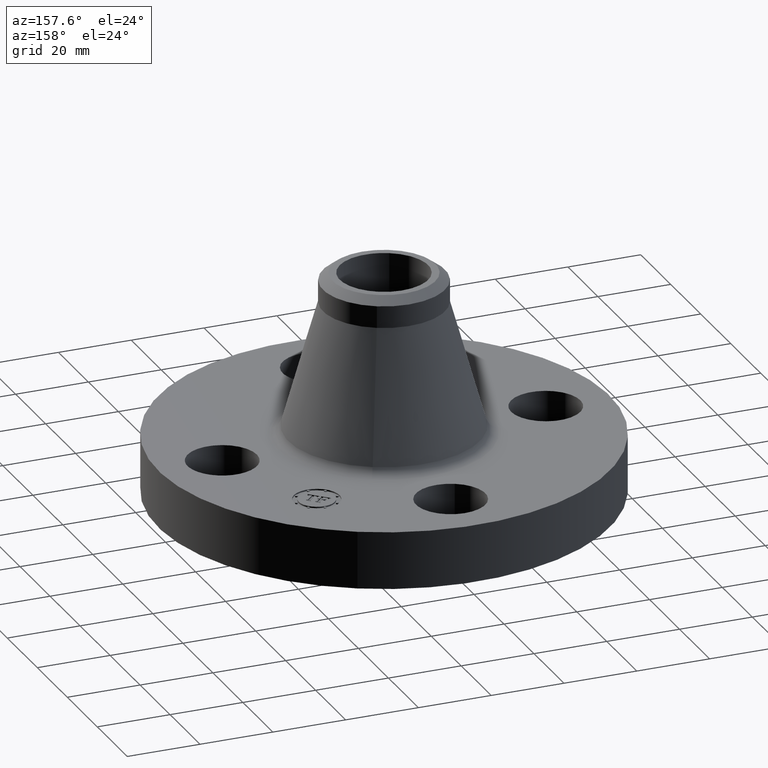
[diagram: clean part render]
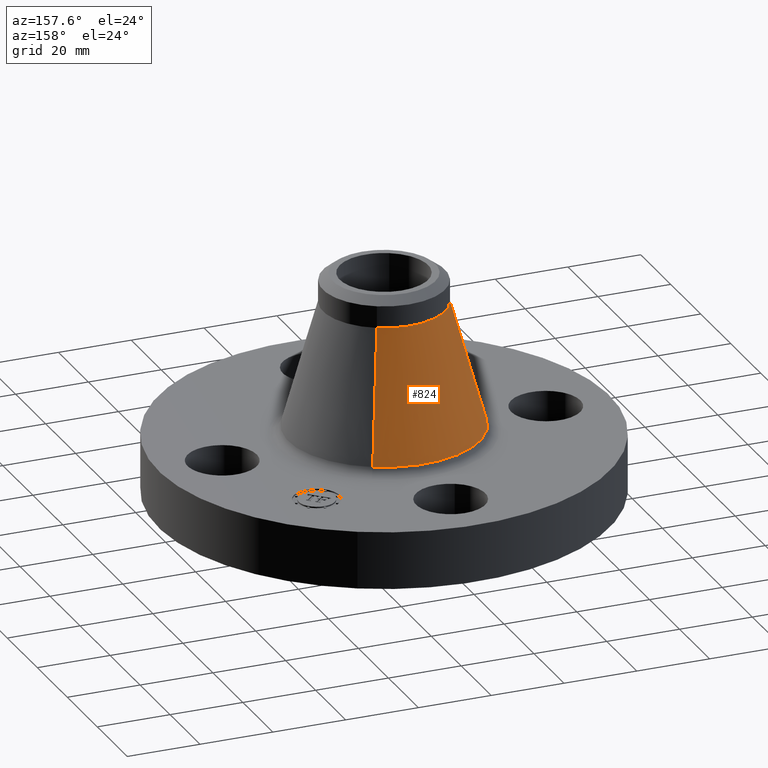
[diagram: same view with one face highlighted and labeled with its STEP entity id]
A machine part, auxiliary view. The second image highlights one B-rep face of the part: STEP entity #824.
In plain terms, the highlighted conical surface has half-angle 15.474 deg.
Its self-contained STEP definition (entity closure, byte-faithful):
#636=AXIS2_PLACEMENT_3D('Circle Axis2P3D',#634,#635,$) ;
#797=AXIS2_PLACEMENT_3D('Cone Axis2P3D',#794,#795,#796) ;
#808=AXIS2_PLACEMENT_3D('Circle Axis2P3D',#806,#807,$) ;
#631=CARTESIAN_POINT('Vertex',(-0.496513817097,-0.908862445855,0.707984487806)) ;
#634=CARTESIAN_POINT('Axis2P3D Location',(0.,0.,0.707984487807)) ;
#638=CARTESIAN_POINT('Vertex',(0.496513817097,0.908862445855,0.707984487807)) ;
#794=CARTESIAN_POINT('Axis2P3D Location',(0.,0.,2.06492912712)) ;
#799=CARTESIAN_POINT('Line Origine',(-0.406467336287,-0.74403346835,1.38645680746)) ;
#803=CARTESIAN_POINT('Vertex',(-0.31642085548,-0.57920449085,2.06492912712)) ;
#806=CARTESIAN_POINT('Axis2P3D Location',(0.,0.,2.06492912712)) ;
#810=CARTESIAN_POINT('Vertex',(0.31642085548,0.57920449085,2.06492912712)) ;
#813=CARTESIAN_POINT('Line Origine',(0.406467336287,0.74403346835,1.38645680746)) ;
#635=DIRECTION('Axis2P3D Direction',(-0.,0.,-0.0393700787402)) ;
#795=DIRECTION('Axis2P3D Direction',(0.,0.,-0.0393700787402)) ;
#796=DIRECTION('Axis2P3D XDirection',(-0.0188750212049,-0.0345504945626,0.)) ;
#800=DIRECTION('Vector Direction',(-0.0050357789301,-0.0092179315008,-0.0379430332132)) ;
#807=DIRECTION('Axis2P3D Direction',(-0.,0.,-0.0393700787402)) ;
#814=DIRECTION('Vector Direction',(0.0050357789301,0.0092179315008,-0.0379430332132)) ;
#801=VECTOR('Line Direction',#800,0.0393700787402) ;
#815=VECTOR('Line Direction',#814,0.0393700787402) ;
#819=ORIENTED_EDGE('',*,*,#640,.F.) ;
#820=ORIENTED_EDGE('',*,*,#805,.T.) ;
#821=ORIENTED_EDGE('',*,*,#812,.T.) ;
#822=ORIENTED_EDGE('',*,*,#817,.F.) ;
#824=ADVANCED_FACE('PartBody',(#823),#798,.T.) ;
#637=CIRCLE('generated circle',#636,1.03564323783) ;
#809=CIRCLE('generated circle',#808,0.660000000003) ;
#798=CONICAL_SURFACE('Cone',#797,0.660000000003,0.270066923464) ;
#640=EDGE_CURVE('',#632,#639,#637,.T.) ;
#805=EDGE_CURVE('',#632,#804,#802,.F.) ;
#812=EDGE_CURVE('',#804,#811,#809,.T.) ;
#817=EDGE_CURVE('',#639,#811,#816,.F.) ;
#818=EDGE_LOOP('',(#819,#820,#821,#822)) ;
#823=FACE_OUTER_BOUND('',#818,.T.) ;
#802=LINE('Line',#799,#801) ;
#816=LINE('Line',#813,#815) ;
#632=VERTEX_POINT('',#631) ;
#639=VERTEX_POINT('',#638) ;
#804=VERTEX_POINT('',#803) ;
#811=VERTEX_POINT('',#810) ;